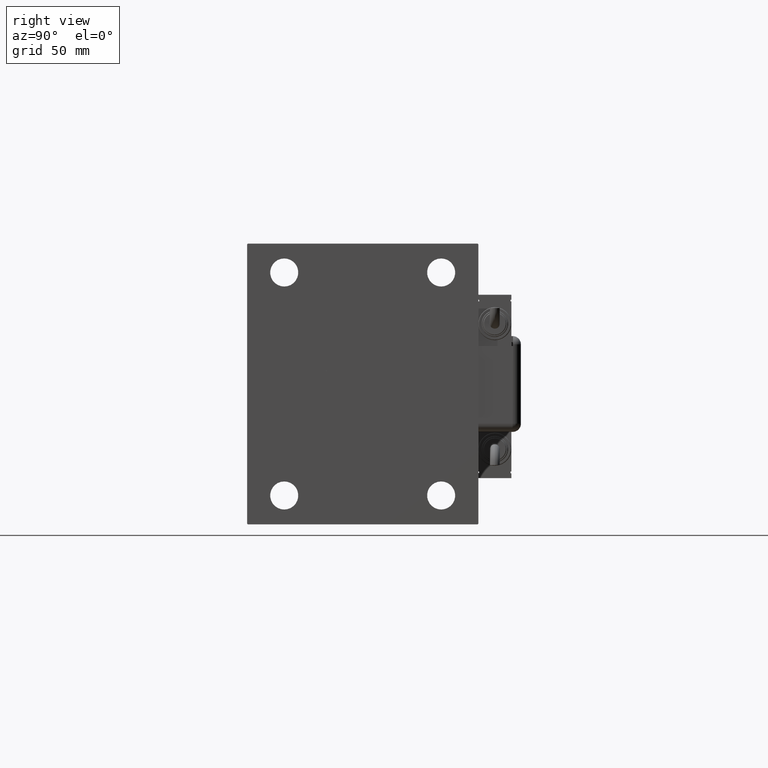
[diagram: clean part render]
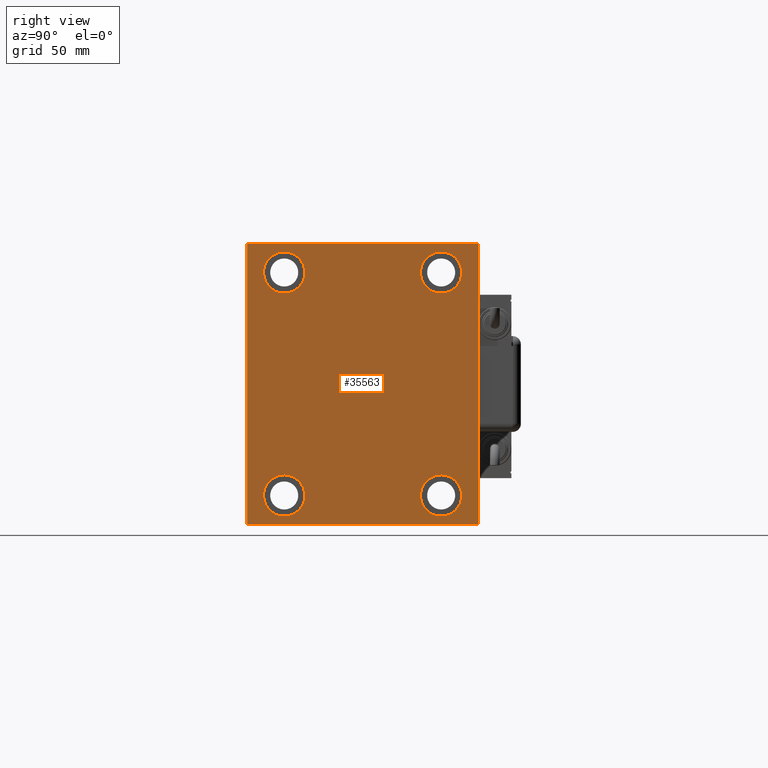
[diagram: same view with one face highlighted and labeled with its STEP entity id]
A machine part, right view. The second image highlights one B-rep face of the part: STEP entity #35563.
In plain terms, the highlighted planar face has unit normal (1, 0, 0).
Its self-contained STEP definition (entity closure, byte-faithful):
#661 = CARTESIAN_POINT ( 'NONE',  ( 255.0000000000000000, 47.50000000000000711, -67.50000000000000000 ) ) ;
#769 = VERTEX_POINT ( 'NONE', #43673 ) ;
#1146 = ORIENTED_EDGE ( 'NONE', *, *, #9837, .T. ) ;
#1243 = EDGE_CURVE ( 'NONE', #52874, #28241, #50524, .T. ) ;
#1381 = DIRECTION ( 'NONE',  ( 0.000000000000000000, 0.000000000000000000, 1.000000000000000000 ) ) ;
#1421 = AXIS2_PLACEMENT_3D ( 'NONE', #34169, #53158, #43201 ) ;
#2254 = AXIS2_PLACEMENT_3D ( 'NONE', #20342, #3120, #1381 ) ;
#2430 = FACE_BOUND ( 'NONE', #38305, .T. ) ;
#2631 = CARTESIAN_POINT ( 'NONE',  ( 255.0000000000000000, -69.99999999999998579, -84.50000000000004263 ) ) ;
#2738 = EDGE_CURVE ( 'NONE', #50616, #13451, #8374, .T. ) ;
#3083 = EDGE_LOOP ( 'NONE', ( #48130, #10824 ) ) ;
#3120 = DIRECTION ( 'NONE',  ( -1.000000000000000000, -0.000000000000000000, -0.000000000000000000 ) ) ;
#3901 = CARTESIAN_POINT ( 'NONE',  ( 255.0000000000000000, 47.50000000000000711, -80.00000000000000000 ) ) ;
#4818 = EDGE_CURVE ( 'NONE', #48262, #769, #12456, .T. ) ;
#6411 = CARTESIAN_POINT ( 'NONE',  ( 255.0000000000000000, 47.50000000000000711, 80.00000000000001421 ) ) ;
#6500 = DIRECTION ( 'NONE',  ( 1.000000000000000000, 0.000000000000000000, 0.000000000000000000 ) ) ;
#6782 = DIRECTION ( 'NONE',  ( -0.000000000000000000, 0.7071067811865376918, -0.7071067811865573427 ) ) ;
#6798 = FACE_BOUND ( 'NONE', #59509, .T. ) ;
#7768 = VERTEX_POINT ( 'NONE', #27203 ) ;
#7875 = CARTESIAN_POINT ( 'NONE',  ( 255.0000000000000000, -69.99999999999998579, 84.99999999999998579 ) ) ;
#8374 = CIRCLE ( 'NONE', #1421, 12.49999999999999645 ) ;
#8817 = DIRECTION ( 'NONE',  ( -1.000000000000000000, -0.000000000000000000, -0.000000000000000000 ) ) ;
#9013 = VECTOR ( 'NONE', #43754, 1000.000000000000000 ) ;
#9615 = CARTESIAN_POINT ( 'NONE',  ( 255.0000000000000000, 77.25000000000099476, 77.24999999999884892 ) ) ;
#9806 = DIRECTION ( 'NONE',  ( 0.000000000000000000, 0.000000000000000000, 1.000000000000000000 ) ) ;
#9837 = EDGE_CURVE ( 'NONE', #7768, #49851, #24422, .T. ) ;
#9917 = VECTOR ( 'NONE', #38992, 1000.000000000000000 ) ;
#9971 = DIRECTION ( 'NONE',  ( -1.000000000000000000, -0.000000000000000000, -0.000000000000000000 ) ) ;
#10824 = ORIENTED_EDGE ( 'NONE', *, *, #37095, .T. ) ;
#11060 = CARTESIAN_POINT ( 'NONE',  ( 255.0000000000000000, 69.50000000000012790, -85.00000000000001421 ) ) ;
#12058 = CARTESIAN_POINT ( 'NONE',  ( 255.0000000000000000, -47.49999999999999289, -80.00000000000000000 ) ) ;
#12456 = CIRCLE ( 'NONE', #41250, 12.49999999999999645 ) ;
#12751 = DIRECTION ( 'NONE',  ( 0.000000000000000000, -0.7071067811865474617, -0.7071067811865474617 ) ) ;
#12863 = DIRECTION ( 'NONE',  ( 0.000000000000000000, 0.000000000000000000, -1.000000000000000000 ) ) ;
#13451 = VERTEX_POINT ( 'NONE', #12058 ) ;
#13506 = AXIS2_PLACEMENT_3D ( 'NONE', #18300, #13945, #56591 ) ;
#13811 = ORIENTED_EDGE ( 'NONE', *, *, #18582, .T. ) ;
#13945 = DIRECTION ( 'NONE',  ( -1.000000000000000000, -0.000000000000000000, -0.000000000000000000 ) ) ;
#14103 = DIRECTION ( 'NONE',  ( 0.000000000000000000, 0.000000000000000000, 1.000000000000000000 ) ) ;
#14171 = EDGE_LOOP ( 'NONE', ( #57098, #36049 ) ) ;
#14303 = VECTOR ( 'NONE', #12863, 1000.000000000000000 ) ;
#14486 = AXIS2_PLACEMENT_3D ( 'NONE', #36961, #46612, #55351 ) ;
#15545 = PLANE ( 'NONE',  #23354 ) ;
#17847 = CARTESIAN_POINT ( 'NONE',  ( 255.0000000000000000, 70.00000000000002842, -84.50000000000009948 ) ) ;
#18156 = CIRCLE ( 'NONE', #2254, 12.50000000000001066 ) ;
#18300 = CARTESIAN_POINT ( 'NONE',  ( 255.0000000000000000, 47.50000000000000711, 67.50000000000000000 ) ) ;
#18582 = EDGE_CURVE ( 'NONE', #55849, #53984, #50538, .T. ) ;
#19241 = CARTESIAN_POINT ( 'NONE',  ( 255.0000000000000000, -47.49999999999997868, 55.00000000000000000 ) ) ;
#19781 = VERTEX_POINT ( 'NONE', #49781 ) ;
#19865 = ORIENTED_EDGE ( 'NONE', *, *, #27639, .T. ) ;
#20072 = VECTOR ( 'NONE', #56313, 1000.000000000000114 ) ;
#20342 = CARTESIAN_POINT ( 'NONE',  ( 255.0000000000000000, -47.49999999999997868, 67.50000000000000000 ) ) ;
#20419 = CIRCLE ( 'NONE', #14486, 12.49999999999999645 ) ;
#20495 = DIRECTION ( 'NONE',  ( 0.000000000000000000, 0.000000000000000000, -1.000000000000000000 ) ) ;
#20508 = EDGE_CURVE ( 'NONE', #19781, #52874, #60374, .T. ) ;
#21010 = ORIENTED_EDGE ( 'NONE', *, *, #20508, .T. ) ;
#21074 = EDGE_CURVE ( 'NONE', #24489, #53931, #44664, .T. ) ;
#21145 = EDGE_CURVE ( 'NONE', #43425, #19781, #46516, .T. ) ;
#22990 = CARTESIAN_POINT ( 'NONE',  ( 255.0000000000000000, -47.49999999999999289, -55.00000000000000711 ) ) ;
#23354 = AXIS2_PLACEMENT_3D ( 'NONE', #25773, #6500, #20495 ) ;
#24422 = CIRCLE ( 'NONE', #29392, 12.50000000000001066 ) ;
#24489 = VERTEX_POINT ( 'NONE', #51197 ) ;
#25499 = ORIENTED_EDGE ( 'NONE', *, *, #29292, .T. ) ;
#25773 = CARTESIAN_POINT ( 'NONE',  ( 255.0000000000000000, 0.000000000000000000, 0.000000000000000000 ) ) ;
#26345 = ORIENTED_EDGE ( 'NONE', *, *, #21074, .T. ) ;
#26408 = CIRCLE ( 'NONE', #13506, 12.50000000000001066 ) ;
#27203 = CARTESIAN_POINT ( 'NONE',  ( 255.0000000000000000, -47.49999999999997868, 80.00000000000001421 ) ) ;
#27639 = EDGE_CURVE ( 'NONE', #53984, #43425, #52254, .T. ) ;
#27981 = EDGE_LOOP ( 'NONE', ( #38094, #21010, #39833, #45277, #26345, #34299, #13811, #19865 ) ) ;
#28117 = CARTESIAN_POINT ( 'NONE',  ( 255.0000000000000000, -69.99999999999998579, 84.50000000000001421 ) ) ;
#28241 = VERTEX_POINT ( 'NONE', #2631 ) ;
#28296 = EDGE_CURVE ( 'NONE', #53931, #55849, #50871, .T. ) ;
#29031 = VERTEX_POINT ( 'NONE', #6411 ) ;
#29292 = EDGE_CURVE ( 'NONE', #49851, #7768, #18156, .T. ) ;
#29392 = AXIS2_PLACEMENT_3D ( 'NONE', #46754, #42082, #29615 ) ;
#29407 = VERTEX_POINT ( 'NONE', #60698 ) ;
#29434 = CARTESIAN_POINT ( 'NONE',  ( 255.0000000000000000, -69.99999999999998579, -85.00000000000002842 ) ) ;
#29615 = DIRECTION ( 'NONE',  ( 0.000000000000000000, 0.000000000000000000, 1.000000000000000000 ) ) ;
#29823 = CARTESIAN_POINT ( 'NONE',  ( 255.0000000000000000, -77.25000000000099476, -77.24999999999884892 ) ) ;
#30426 = LINE ( 'NONE', #29823, #30991 ) ;
#30845 = EDGE_CURVE ( 'NONE', #29407, #29031, #45036, .T. ) ;
#30991 = VECTOR ( 'NONE', #6782, 1000.000000000000114 ) ;
#31430 = CIRCLE ( 'NONE', #32419, 12.49999999999999645 ) ;
#32419 = AXIS2_PLACEMENT_3D ( 'NONE', #56746, #8817, #14103 ) ;
#34169 = CARTESIAN_POINT ( 'NONE',  ( 255.0000000000000000, -47.49999999999999289, -67.50000000000000000 ) ) ;
#34299 = ORIENTED_EDGE ( 'NONE', *, *, #28296, .T. ) ;
#35563 = ADVANCED_FACE ( 'NONE', ( #45064, #6798, #58770, #2430, #44758 ), #15545, .T. ) ;
#35743 = EDGE_CURVE ( 'NONE', #769, #48262, #20419, .T. ) ;
#36049 = ORIENTED_EDGE ( 'NONE', *, *, #35743, .T. ) ;
#36961 = CARTESIAN_POINT ( 'NONE',  ( 255.0000000000000000, 47.50000000000000711, -67.50000000000000000 ) ) ;
#37095 = EDGE_CURVE ( 'NONE', #29031, #29407, #26408, .T. ) ;
#37609 = CARTESIAN_POINT ( 'NONE',  ( 255.0000000000000000, 69.50000000000004263, 85.00000000000000000 ) ) ;
#38094 = ORIENTED_EDGE ( 'NONE', *, *, #21145, .T. ) ;
#38305 = EDGE_LOOP ( 'NONE', ( #60051, #46864 ) ) ;
#38750 = DIRECTION ( 'NONE',  ( -1.000000000000000000, -0.000000000000000000, -0.000000000000000000 ) ) ;
#38917 = DIRECTION ( 'NONE',  ( 0.000000000000000000, 0.000000000000000000, 1.000000000000000000 ) ) ;
#38992 = DIRECTION ( 'NONE',  ( 0.000000000000000000, -8.163404592832031500E-17, 1.000000000000000000 ) ) ;
#39095 = AXIS2_PLACEMENT_3D ( 'NONE', #48091, #38750, #9806 ) ;
#39833 = ORIENTED_EDGE ( 'NONE', *, *, #1243, .T. ) ;
#41250 = AXIS2_PLACEMENT_3D ( 'NONE', #661, #9971, #38917 ) ;
#42082 = DIRECTION ( 'NONE',  ( -1.000000000000000000, -0.000000000000000000, -0.000000000000000000 ) ) ;
#42258 = EDGE_CURVE ( 'NONE', #13451, #50616, #31430, .T. ) ;
#43201 = DIRECTION ( 'NONE',  ( 0.000000000000000000, 0.000000000000000000, 1.000000000000000000 ) ) ;
#43425 = VERTEX_POINT ( 'NONE', #37609 ) ;
#43673 = CARTESIAN_POINT ( 'NONE',  ( 255.0000000000000000, 47.50000000000000711, -55.00000000000000711 ) ) ;
#43754 = DIRECTION ( 'NONE',  ( 0.000000000000000000, 1.000000000000000000, 9.912705577010325549E-17 ) ) ;
#44664 = LINE ( 'NONE', #29434, #9013 ) ;
#44758 = FACE_OUTER_BOUND ( 'NONE', #27981, .T. ) ;
#44939 = VECTOR ( 'NONE', #54922, 999.9999999999998863 ) ;
#45036 = CIRCLE ( 'NONE', #39095, 12.50000000000001066 ) ;
#45064 = FACE_BOUND ( 'NONE', #14171, .T. ) ;
#45277 = ORIENTED_EDGE ( 'NONE', *, *, #45867, .T. ) ;
#45583 = CARTESIAN_POINT ( 'NONE',  ( 255.0000000000000000, 77.25000000000103739, -77.24999999999890576 ) ) ;
#45586 = CARTESIAN_POINT ( 'NONE',  ( 255.0000000000000000, 70.00000000000001421, 85.00000000000000000 ) ) ;
#45867 = EDGE_CURVE ( 'NONE', #28241, #24489, #30426, .T. ) ;
#46516 = LINE ( 'NONE', #45586, #51758 ) ;
#46612 = DIRECTION ( 'NONE',  ( -1.000000000000000000, -0.000000000000000000, -0.000000000000000000 ) ) ;
#46754 = CARTESIAN_POINT ( 'NONE',  ( 255.0000000000000000, -47.49999999999997868, 67.50000000000000000 ) ) ;
#46864 = ORIENTED_EDGE ( 'NONE', *, *, #2738, .T. ) ;
#48091 = CARTESIAN_POINT ( 'NONE',  ( 255.0000000000000000, 47.50000000000000711, 67.50000000000000000 ) ) ;
#48130 = ORIENTED_EDGE ( 'NONE', *, *, #30845, .T. ) ;
#48262 = VERTEX_POINT ( 'NONE', #3901 ) ;
#49781 = CARTESIAN_POINT ( 'NONE',  ( 255.0000000000000000, -69.50000000000001421, 84.99999999999998579 ) ) ;
#49851 = VERTEX_POINT ( 'NONE', #19241 ) ;
#50524 = LINE ( 'NONE', #7875, #14303 ) ;
#50538 = LINE ( 'NONE', #57383, #9917 ) ;
#50616 = VERTEX_POINT ( 'NONE', #22990 ) ;
#50871 = LINE ( 'NONE', #45583, #44939 ) ;
#51197 = CARTESIAN_POINT ( 'NONE',  ( 255.0000000000000000, -69.50000000000001421, -85.00000000000002842 ) ) ;
#51758 = VECTOR ( 'NONE', #54925, 1000.000000000000000 ) ;
#52254 = LINE ( 'NONE', #9615, #20072 ) ;
#52752 = VECTOR ( 'NONE', #12751, 1000.000000000000114 ) ;
#52874 = VERTEX_POINT ( 'NONE', #28117 ) ;
#53158 = DIRECTION ( 'NONE',  ( -1.000000000000000000, -0.000000000000000000, -0.000000000000000000 ) ) ;
#53931 = VERTEX_POINT ( 'NONE', #11060 ) ;
#53984 = VERTEX_POINT ( 'NONE', #58082 ) ;
#54922 = DIRECTION ( 'NONE',  ( -0.000000000000000000, 0.7071067811865376918, 0.7071067811865574537 ) ) ;
#54925 = DIRECTION ( 'NONE',  ( 0.000000000000000000, -1.000000000000000000, -9.912705577010325549E-17 ) ) ;
#55351 = DIRECTION ( 'NONE',  ( 0.000000000000000000, 0.000000000000000000, 1.000000000000000000 ) ) ;
#55400 = CARTESIAN_POINT ( 'NONE',  ( 255.0000000000000000, -77.25000000000001421, 77.25000000000001421 ) ) ;
#55849 = VERTEX_POINT ( 'NONE', #17847 ) ;
#56313 = DIRECTION ( 'NONE',  ( -0.000000000000000000, -0.7071067811865376918, 0.7071067811865573427 ) ) ;
#56591 = DIRECTION ( 'NONE',  ( 0.000000000000000000, 0.000000000000000000, 1.000000000000000000 ) ) ;
#56746 = CARTESIAN_POINT ( 'NONE',  ( 255.0000000000000000, -47.49999999999999289, -67.50000000000000000 ) ) ;
#57098 = ORIENTED_EDGE ( 'NONE', *, *, #4818, .T. ) ;
#57383 = CARTESIAN_POINT ( 'NONE',  ( 255.0000000000000000, 70.00000000000002842, -85.00000000000001421 ) ) ;
#58082 = CARTESIAN_POINT ( 'NONE',  ( 255.0000000000000000, 70.00000000000001421, 84.50000000000001421 ) ) ;
#58770 = FACE_BOUND ( 'NONE', #3083, .T. ) ;
#59509 = EDGE_LOOP ( 'NONE', ( #25499, #1146 ) ) ;
#60051 = ORIENTED_EDGE ( 'NONE', *, *, #42258, .T. ) ;
#60374 = LINE ( 'NONE', #55400, #52752 ) ;
#60698 = CARTESIAN_POINT ( 'NONE',  ( 255.0000000000000000, 47.50000000000000711, 55.00000000000000000 ) ) ;